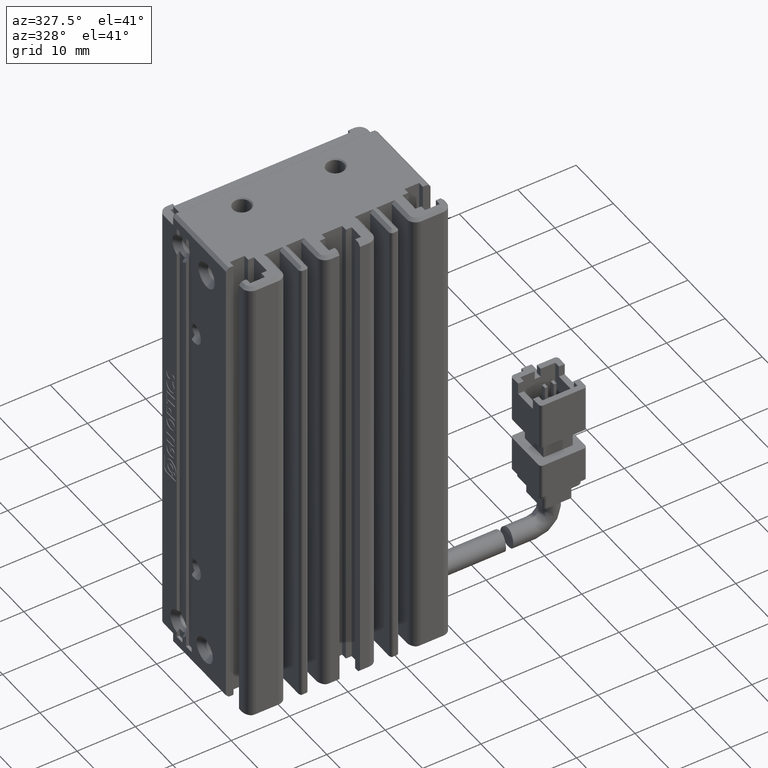
[diagram: clean part render]
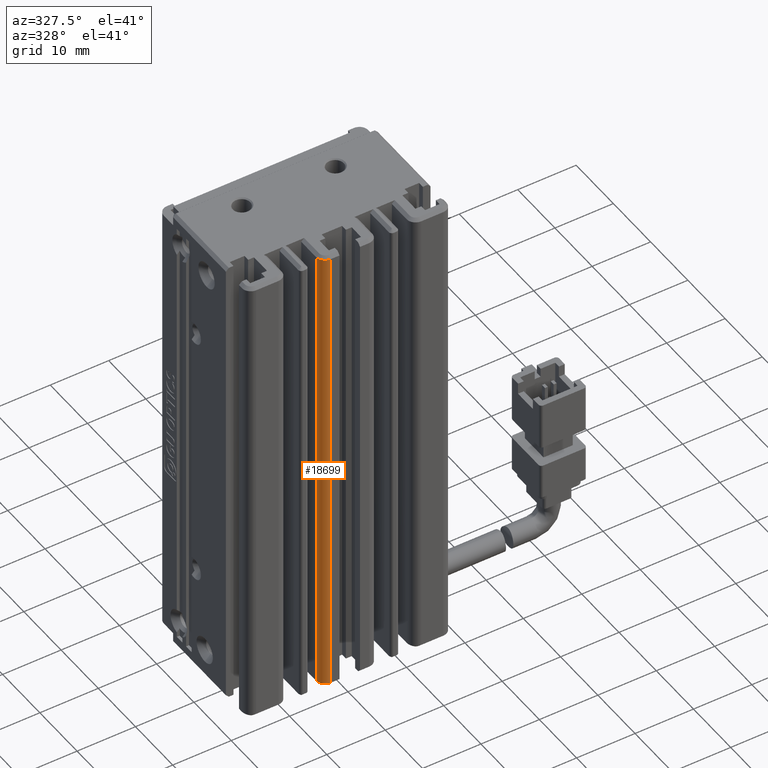
[diagram: same view with one face highlighted and labeled with its STEP entity id]
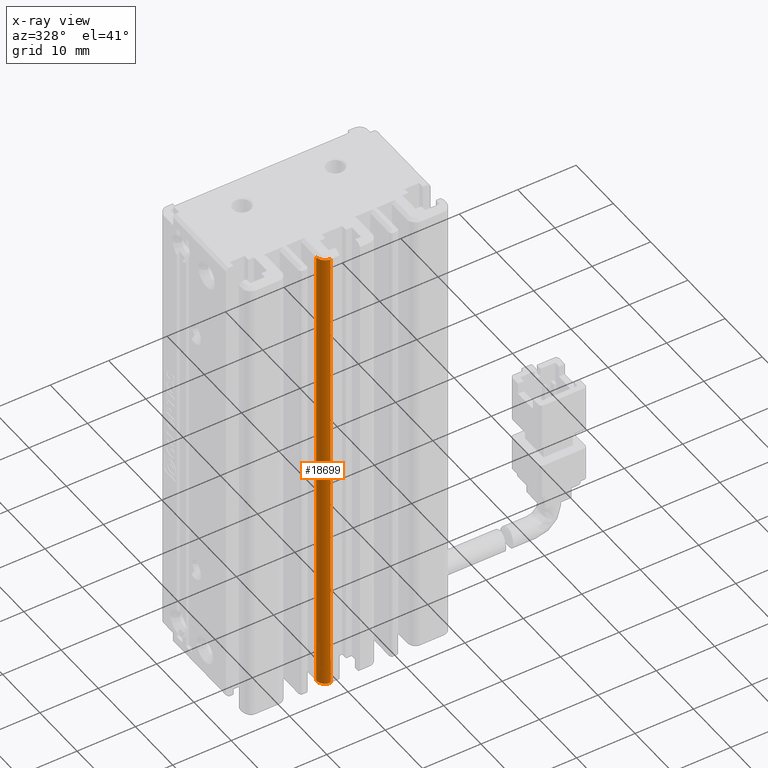
[diagram: x-ray of the same camera — body ghosted, the highlighted face saturated]
A machine part, auxiliary view. The second image highlights one B-rep face of the part: STEP entity #18699.
The next image is the same camera in x-ray: the body ghosted, the highlighted face saturated — about 0% of this face is hidden behind the body in this view.
In plain terms, the highlighted cylindrical surface (edge-blend (fillet) strip) has radius 1.5 mm, axis along (-0, -0, -1).
Its self-contained STEP definition (entity closure, byte-faithful):
#1413 = CIRCLE ( 'NONE', #28800, 1.500000000000001300 ) ;
#1531 = DIRECTION ( 'NONE',  ( 0.0000000000000000000, 0.0000000000000000000, 1.000000000000000000 ) ) ;
#3050 = VECTOR ( 'NONE', #24384, 1000.000000000000000 ) ;
#3163 = CARTESIAN_POINT ( 'NONE',  ( 37.62537974683544900, 10.99073232307410600, -155.5000000000163700 ) ) ;
#3428 = EDGE_LOOP ( 'NONE', ( #36874, #15726, #17189, #7842 ) ) ;
#6067 = VECTOR ( 'NONE', #16957, 1000.000000000000000 ) ;
#7842 = ORIENTED_EDGE ( 'NONE', *, *, #22151, .T. ) ;
#8164 = DIRECTION ( 'NONE',  ( -1.000000000000000000, 0.0000000000000000000, 0.0000000000000000000 ) ) ;
#11920 = DIRECTION ( 'NONE',  ( -1.000000000000000000, 0.0000000000000000000, 0.0000000000000000000 ) ) ;
#13465 = CARTESIAN_POINT ( 'NONE',  ( 36.12537974682401700, 12.49073232304837700, -74.50000000001205100 ) ) ;
#13653 = CARTESIAN_POINT ( 'NONE',  ( 37.62537974683543500, 12.49073232304837000, -155.5000000000000300 ) ) ;
#13797 = EDGE_CURVE ( 'NONE', #33578, #32631, #22583, .T. ) ;
#15726 = ORIENTED_EDGE ( 'NONE', *, *, #28213, .T. ) ;
#16328 = LINE ( 'NONE', #30388, #3050 ) ;
#16834 = AXIS2_PLACEMENT_3D ( 'NONE', #29937, #18252, #11920 ) ;
#16957 = DIRECTION ( 'NONE',  ( 0.0000000000000000000, 0.0000000000000000000, 1.000000000000000000 ) ) ;
#17189 = ORIENTED_EDGE ( 'NONE', *, *, #13797, .T. ) ;
#17536 = VERTEX_POINT ( 'NONE', #13465 ) ;
#18252 = DIRECTION ( 'NONE',  ( -0.0000000000000000000, -0.0000000000000000000, -1.000000000000000000 ) ) ;
#18699 = ADVANCED_FACE ( 'NONE', ( #33802 ), #31518, .T. ) ;
#22151 = EDGE_CURVE ( 'NONE', #32631, #17536, #1413, .T. ) ;
#22583 = LINE ( 'NONE', #22649, #6067 ) ;
#22649 = CARTESIAN_POINT ( 'NONE',  ( 37.62537974683544900, 10.99073232304837000, -74.00000000000001400 ) ) ;
#23170 = AXIS2_PLACEMENT_3D ( 'NONE', #13653, #1531, #34071 ) ;
#23534 = CIRCLE ( 'NONE', #23170, 1.500000000000001300 ) ;
#23842 = VERTEX_POINT ( 'NONE', #25620 ) ;
#24384 = DIRECTION ( 'NONE',  ( 0.0000000000000000000, 0.0000000000000000000, 1.000000000000000000 ) ) ;
#25620 = CARTESIAN_POINT ( 'NONE',  ( 36.12537974686664900, 12.49073232304838000, -155.5000000000163700 ) ) ;
#26113 = DIRECTION ( 'NONE',  ( -0.0000000000000000000, -0.0000000000000000000, -1.000000000000000000 ) ) ;
#28213 = EDGE_CURVE ( 'NONE', #23842, #33578, #23534, .T. ) ;
#28800 = AXIS2_PLACEMENT_3D ( 'NONE', #37778, #26113, #8164 ) ;
#29937 = CARTESIAN_POINT ( 'NONE',  ( 37.62537974683543500, 12.49073232304837000, -74.00000000000001400 ) ) ;
#30388 = CARTESIAN_POINT ( 'NONE',  ( 36.12537974683543500, 12.49073232304838000, -74.00000000000001400 ) ) ;
#31518 = CYLINDRICAL_SURFACE ( 'NONE', #16834, 1.500000000000001300 ) ;
#32631 = VERTEX_POINT ( 'NONE', #34324 ) ;
#33057 = EDGE_CURVE ( 'NONE', #23842, #17536, #16328, .T. ) ;
#33578 = VERTEX_POINT ( 'NONE', #3163 ) ;
#33802 = FACE_OUTER_BOUND ( 'NONE', #3428, .T. ) ;
#34071 = DIRECTION ( 'NONE',  ( -1.000000000000000000, 0.0000000000000000000, 0.0000000000000000000 ) ) ;
#34324 = CARTESIAN_POINT ( 'NONE',  ( 37.62537974683544900, 10.99073232307410600, -74.49999999996941800 ) ) ;
#36874 = ORIENTED_EDGE ( 'NONE', *, *, #33057, .F. ) ;
#37778 = CARTESIAN_POINT ( 'NONE',  ( 37.62537974683543500, 12.49073232304837000, -74.50000000000001400 ) ) ;